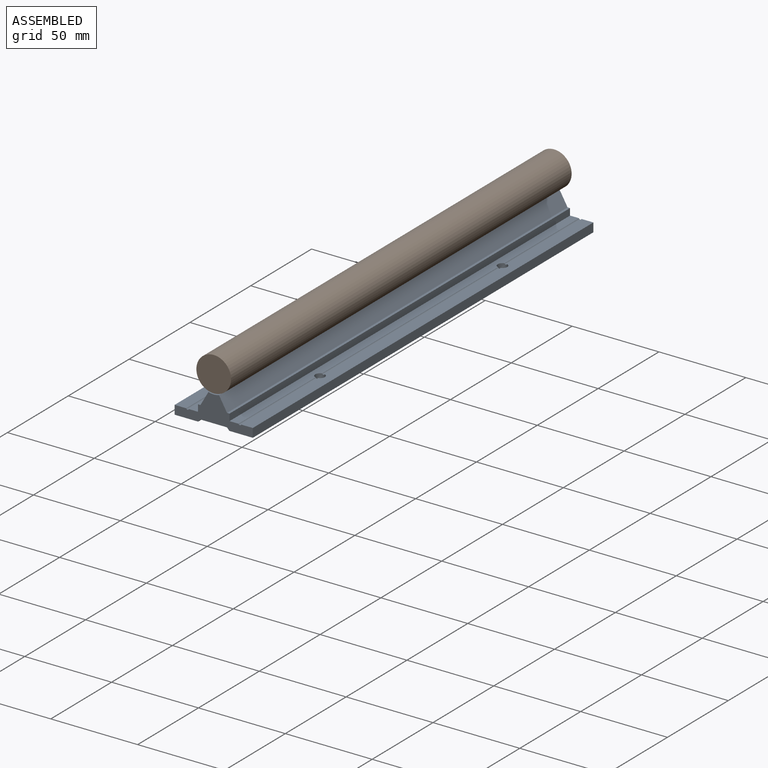
[diagram: assembled view]
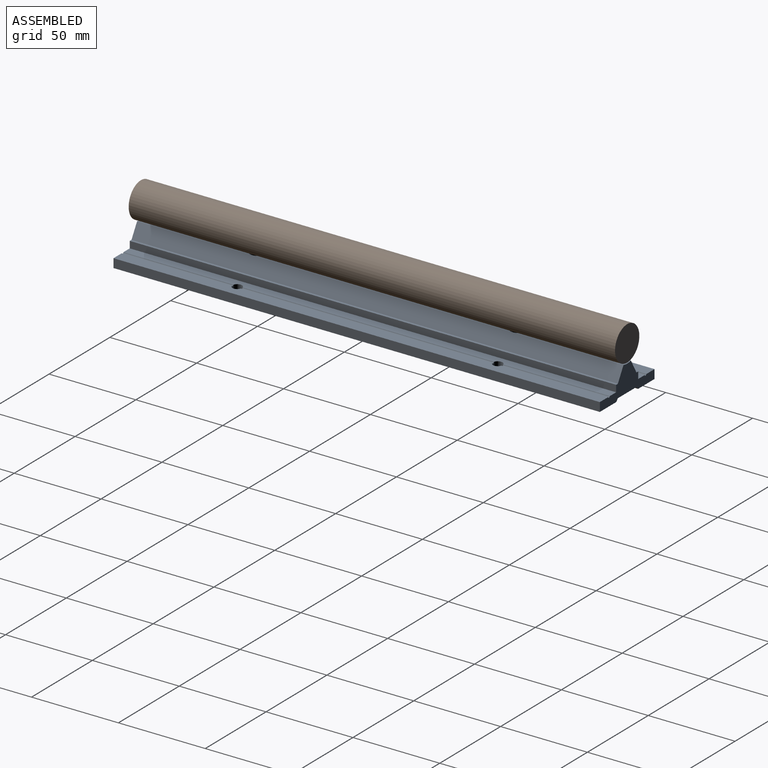
[diagram: assembled view, second angle]
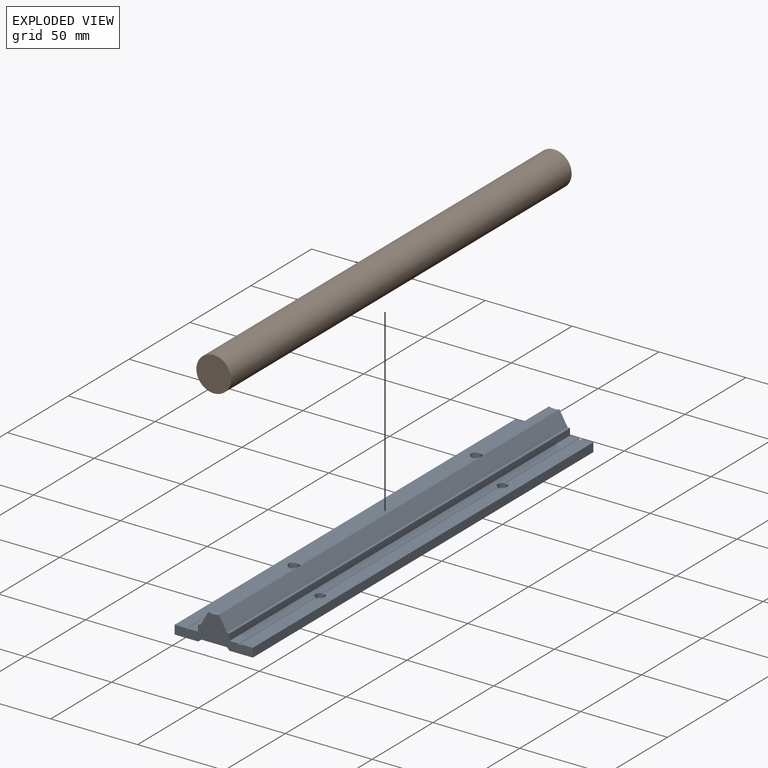
[diagram: exploded view]
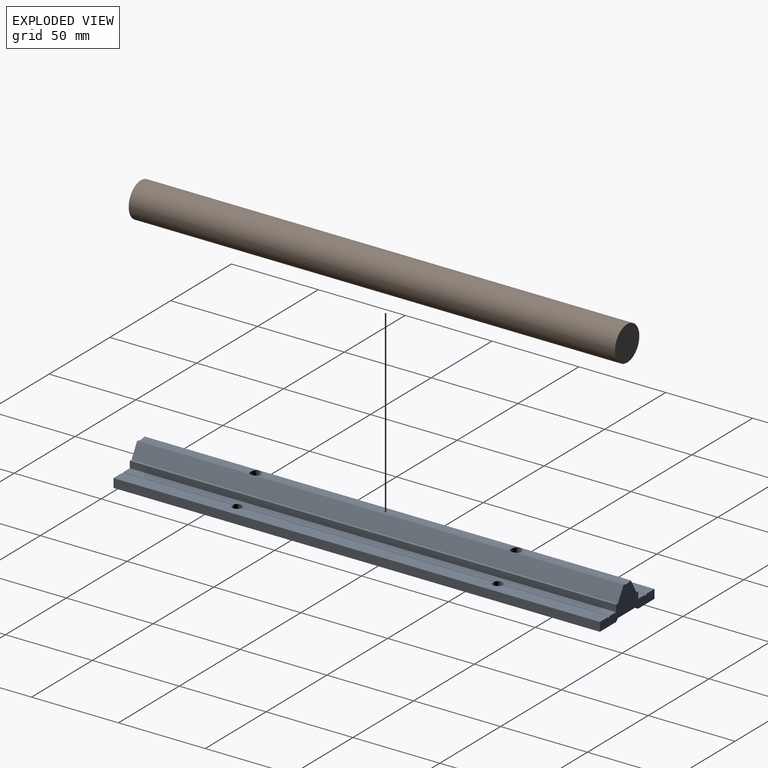
[diagram: exploded view, second angle]
ASSEMBLY  parts=2 mates=2
PART A: 36 faces, bbox 45x280x17 mm
  f0: cylinder r=3mm len=9.51mm, axis (0,0,-1), area 175mm2, adj f19,f34
  f1: cylinder r=3mm len=9.51mm, axis (0,0,-1), area 175mm2, adj f19,f32
  f2: plane 280x6.7mm, normal (0,0,1), area 1861.2mm2, adj f3,f4,f5,f15,f26,f27,f30,f31
  f3: cylinder r=0.78mm len=144.73mm, axis (0,-1,0), area 284.2mm2, adj f2,f6,f30,f31
  f4: cylinder r=0.78mm len=61.37mm, axis (0,-1,0), area 120.5mm2, adj f2,f6,f26,f31
  f5: cylinder r=0.78mm len=63.37mm, axis (0,-1,0), area 124.4mm2, adj f2,f6,f27,f30
  f6: plane 280x5.21mm, normal (0,0,1), area 1443.8mm2, adj f3,f4,f5,f16,f26,f27,f30,f31
  f7: cylinder r=0.78mm len=63.37mm, axis (0,-1,0), area 124.4mm2, adj f23,f25,f27,f29
  f8: cylinder r=0.78mm len=144.73mm, axis (0,-1,0), area 284.2mm2, adj f23,f25,f28,f29
  f9: plane 280x5.11mm, normal (-1,0,0), area 1431.3mm2, adj f10,f25,f26,f27
  f10: plane 280x13.51mm, normal (0,0,-1), area 3734.9mm2, adj f9,f11,f26,f27,f28,f29
  f11: plane 280x1.48mm, normal (0.74,0,-0.68), area 563mm2, adj f10,f12,f26,f27
  f12: plane 280x15.24mm, normal (0,0,-1), area 4109.6mm2, adj f11,f13,f26,f27,f33,f35
  f13: plane 280x1.48mm, normal (-0.74,0,-0.68), area 563mm2, adj f12,f14,f26,f27
  f14: plane 280x13.51mm, normal (0,0,-1), area 3734.9mm2, adj f13,f15,f26,f27,f30,f31
  f15: plane 280x5.11mm, normal (1,0,0), area 1431.3mm2, adj f2,f14,f26,f27
  f16: plane 280x3.89mm, normal (1,0,0), area 1089.8mm2, adj f6,f17,f26,f27
  f17: plane 280x1.43mm, normal (0,0,1), area 400.3mm2, adj f16,f18,f26,f27
  f18: plane 280x8mm, normal (0.87,0,0.5), area 2586.5mm2, adj f17,f19,f26,f27
  f19: cylinder r=10.01mm len=280mm, axis (0,-1,0), area 1672mm2, adj f0,f1,f18,f20,f26,f27
  f20: plane 280x8mm, normal (-0.87,0,0.5), area 2586.5mm2, adj f19,f21,f26,f27
  f21: plane 280x1.43mm, normal (0,0,1), area 400.3mm2, adj f20,f22,f26,f27
  f22: plane 280x3.89mm, normal (-1,0,0), area 1089.8mm2, adj f21,f23,f26,f27
  f23: plane 280x5.21mm, normal (0,0,1), area 1443.8mm2, adj f7,f8,f22,f24,f26,f27,f28,f29
  f24: cylinder r=0.78mm len=61.37mm, axis (0,-1,0), area 120.5mm2, adj f23,f25,f26,f28
  f25: plane 280x6.7mm, normal (0,0,1), area 1861.2mm2, adj f7,f8,f9,f24,f26,f27,f28,f29
  f26: plane 44.98x17mm, normal (0,1,0), area 358.6mm2, adj f2,f4,f6,f9,f10,f11,f12,f13
  f27: plane 44.98x17mm, normal (0,-1,0), area 358.6mm2, adj f2,f5,f6,f7,f9,f10,f11,f12
  f28: cylinder r=2.75mm len=5.5mm, axis (0,0,1), area 87.1mm2, adj f8,f10,f23,f24,f25
  f29: cylinder r=2.75mm len=5.5mm, axis (0,0,1), area 87.1mm2, adj f7,f8,f10,f23,f25
  f30: cylinder r=2.75mm len=5.5mm, axis (0,0,1), area 87.1mm2, adj f2,f3,f5,f6,f14
  f31: cylinder r=2.75mm len=5.5mm, axis (0,0,1), area 87.1mm2, adj f2,f3,f4,f6,f14
  f32: plane 10x10mm, normal (0,0,-1), area 50.3mm2, adj f1,f33
  f33: cylinder r=5mm len=10mm, axis (0,0,-1), area 188.5mm2, adj f12,f32
  f34: plane 10x10mm, normal (0,0,-1), area 50.3mm2, adj f0,f35
  f35: cylinder r=5mm len=10mm, axis (0,0,-1), area 188.5mm2, adj f12,f34
PART B: 7 faces, bbox 20x280x20 mm
  f0: cylinder r=10mm len=280mm, axis (0,1,0), area 17535.7mm2, adj f1,f2,f3,f5
  f1: plane 20x20mm, normal (0,-1,0), area 314.2mm2, adj f0
  f2: plane 20x20mm, normal (0,1,0), area 314.2mm2, adj f0
  f3: cylinder r=3mm len=10mm, axis (0,0,1), area 184.2mm2, adj f0,f4
  f4: plane 6x6mm, normal (0,0,-1), area 28.3mm2, adj f3
  f5: cylinder r=3mm len=10mm, axis (0,0,1), area 184.2mm2, adj f0,f6
  f6: plane 6x6mm, normal (0,0,-1), area 28.3mm2, adj f5
PLACE A t=(21.66,-146.95,-12.31)mm
PLACE B rot(axis=(0,0,1),180deg) t=(21.66,-146.95,-2.19)mm
MATE fastened B.f3 <-> A.f0  axis (0,0,1) through (21.66,69.05,-12.26)mm
MATE cylindrical B.f5 <-> A.f1  axis (0,0,1) through (21.66,-80.95,-12.26)mm
